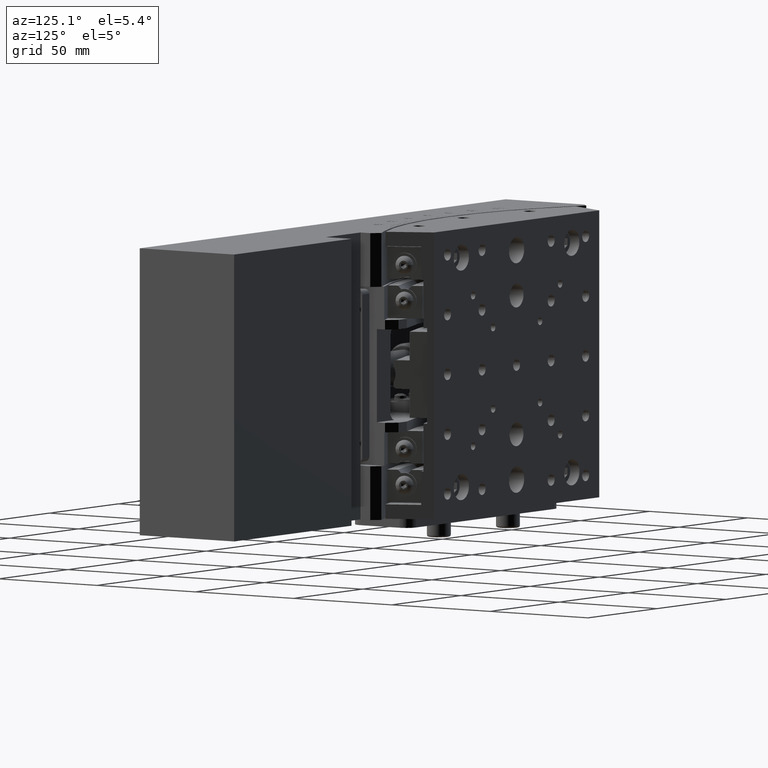
[diagram: clean part render]
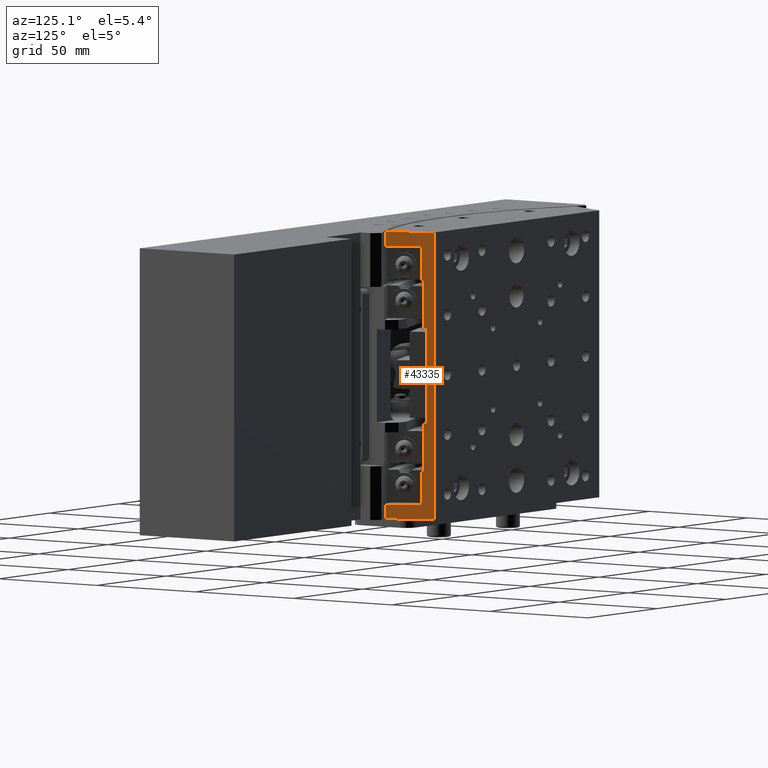
[diagram: same view with one face highlighted and labeled with its STEP entity id]
A machine part, auxiliary view. The second image highlights one B-rep face of the part: STEP entity #43335.
In plain terms, the highlighted planar face has unit normal (-0.895, -0.4462, 0).
Its self-contained STEP definition (entity closure, byte-faithful):
#33 = DIRECTION ( 'NONE',  ( 3.075322940349819998E-23, -3.329426883923090276E-23, 1.000000000000000000 ) ) ;
#1913 = ORIENTED_EDGE ( 'NONE', *, *, #32217, .T. ) ;
#2036 = CARTESIAN_POINT ( 'NONE',  ( -25.42220997326289833, 23.62374986686385014, 65.49875000000000114 ) ) ;
#3811 = LINE ( 'NONE', #35854, #94184 ) ;
#4247 = ORIENTED_EDGE ( 'NONE', *, *, #85969, .F. ) ;
#4286 = CARTESIAN_POINT ( 'NONE',  ( -32.56080812360629295, 37.94298226416484709, -34.50124999999999886 ) ) ;
#5079 = DIRECTION ( 'NONE',  ( 0.4461623843964628300, -0.8949520248313106441, -1.948631312220664627E-23 ) ) ;
#6230 = CARTESIAN_POINT ( 'NONE',  ( -34.52925596305554734, 41.89146927539730569, -14.50125000000000064 ) ) ;
#6756 = ORIENTED_EDGE ( 'NONE', *, *, #88721, .T. ) ;
#7147 = CARTESIAN_POINT ( 'NONE',  ( -34.52925596305554734, 41.89146927539730569, -34.50124999999999886 ) ) ;
#8304 = CARTESIAN_POINT ( 'NONE',  ( -33.23005170020099541, 39.28541030141180102, -14.50125000000000064 ) ) ;
#8516 = CARTESIAN_POINT ( 'NONE',  ( -32.56080812360629295, 37.94298226416484709, -34.50124999999999886 ) ) ;
#9094 = CARTESIAN_POINT ( 'NONE',  ( -34.52925596305554734, 41.89146927539730569, 65.49875000000000114 ) ) ;
#9528 = DIRECTION ( 'NONE',  ( 3.075322940349819998E-23, -3.329426883923090276E-23, 1.000000000000000000 ) ) ;
#10616 = PLANE ( 'NONE',  #102116 ) ;
#14829 = CARTESIAN_POINT ( 'NONE',  ( -32.11464573920989807, 37.04803023933354922, 59.49875000000000114 ) ) ;
#15319 = LINE ( 'NONE', #14829, #31119 ) ;
#16810 = CARTESIAN_POINT ( 'NONE',  ( -25.42220997326289833, 23.62374986686385014, 65.49875000000000114 ) ) ;
#17483 = EDGE_CURVE ( 'NONE', #38943, #31055, #63859, .T. ) ;
#18382 = FACE_OUTER_BOUND ( 'NONE', #40174, .T. ) ;
#20522 = VECTOR ( 'NONE', #99701, 1000.000000000000000 ) ;
#20840 = DIRECTION ( 'NONE',  ( -3.075322940349819998E-23, 3.329426883923090276E-23, -1.000000000000000000 ) ) ;
#21604 = VERTEX_POINT ( 'NONE', #69842 ) ;
#22491 = VERTEX_POINT ( 'NONE', #42437 ) ;
#22537 = ORIENTED_EDGE ( 'NONE', *, *, #50796, .T. ) ;
#23777 = VERTEX_POINT ( 'NONE', #2036 ) ;
#24243 = CARTESIAN_POINT ( 'NONE',  ( -34.52925596305554734, 41.89146927539730569, 65.49875000000000114 ) ) ;
#27319 = VERTEX_POINT ( 'NONE', #38120 ) ;
#29309 = DIRECTION ( 'NONE',  ( -3.075322940349819998E-23, 3.329426883923090276E-23, -1.000000000000000000 ) ) ;
#29758 = CARTESIAN_POINT ( 'NONE',  ( -32.11464573920989807, 37.04803023933354922, -48.50125000000000597 ) ) ;
#29898 = CARTESIAN_POINT ( 'NONE',  ( -32.56080812360629295, 37.94298226416484709, -34.50124999999999886 ) ) ;
#30318 = LINE ( 'NONE', #61822, #30884 ) ;
#30672 = VERTEX_POINT ( 'NONE', #71172 ) ;
#30802 = CARTESIAN_POINT ( 'NONE',  ( -32.11464573920989807, 37.04803023933354922, -34.50124999999999886 ) ) ;
#30884 = VECTOR ( 'NONE', #93294, 1000.000000000000114 ) ;
#31055 = VERTEX_POINT ( 'NONE', #30802 ) ;
#31119 = VECTOR ( 'NONE', #46828, 1000.000000000000000 ) ;
#31208 = EDGE_CURVE ( 'NONE', #76493, #22491, #89083, .T. ) ;
#31897 = EDGE_CURVE ( 'NONE', #31055, #47418, #77932, .T. ) ;
#32138 = CARTESIAN_POINT ( 'NONE',  ( -34.52925596305554734, 41.89146927539730569, 25.49875000000000114 ) ) ;
#32217 = EDGE_CURVE ( 'NONE', #78631, #30672, #30318, .T. ) ;
#33744 = ORIENTED_EDGE ( 'NONE', *, *, #31897, .F. ) ;
#34676 = ORIENTED_EDGE ( 'NONE', *, *, #92669, .F. ) ;
#35854 = CARTESIAN_POINT ( 'NONE',  ( -34.52925596305554734, 41.89146927539730569, 65.49875000000000114 ) ) ;
#36550 = EDGE_CURVE ( 'NONE', #21604, #44209, #54827, .T. ) ;
#36751 = VECTOR ( 'NONE', #95013, 1000.000000000000000 ) ;
#36757 = VECTOR ( 'NONE', #48325, 1000.000000000000000 ) ;
#37771 = DIRECTION ( 'NONE',  ( -0.4461623843964628300, 0.8949520248313106441, 1.948631312220664627E-23 ) ) ;
#38120 = CARTESIAN_POINT ( 'NONE',  ( -34.52925596305554734, 41.89146927539730569, -54.50124999999999886 ) ) ;
#38226 = CARTESIAN_POINT ( 'NONE',  ( -32.11464573920989807, 37.04803023933354922, -48.50125000000000597 ) ) ;
#38273 = LINE ( 'NONE', #6230, #86740 ) ;
#38943 = VERTEX_POINT ( 'NONE', #29758 ) ;
#39055 = LINE ( 'NONE', #16810, #36757 ) ;
#39357 = EDGE_CURVE ( 'NONE', #23777, #62970, #47017, .T. ) ;
#40174 = EDGE_LOOP ( 'NONE', ( #52500, #63288, #22537, #70588, #48222, #86915, #49058, #1913, #6756, #67603, #44335, #42851, #4247, #63561, #34676, #33744 ) ) ;
#42148 = DIRECTION ( 'NONE',  ( -0.4461623843964632186, 0.8949520248313104220, 0.000000000000000000 ) ) ;
#42414 = CARTESIAN_POINT ( 'NONE',  ( -33.23005170020099541, 39.28541030141180102, 25.49875000000000114 ) ) ;
#42437 = CARTESIAN_POINT ( 'NONE',  ( -32.56080812360629295, 37.94298226416484709, 45.49874999999999403 ) ) ;
#42772 = LINE ( 'NONE', #50500, #55009 ) ;
#42851 = ORIENTED_EDGE ( 'NONE', *, *, #36550, .T. ) ;
#42863 = CARTESIAN_POINT ( 'NONE',  ( -25.42220997326289833, 23.62374986686385014, -48.50125000000000597 ) ) ;
#43335 = ADVANCED_FACE ( 'NONE', ( #18382 ), #10616, .F. ) ;
#44209 = VERTEX_POINT ( 'NONE', #42414 ) ;
#44335 = ORIENTED_EDGE ( 'NONE', *, *, #92410, .F. ) ;
#45650 = VERTEX_POINT ( 'NONE', #68599 ) ;
#46583 = VERTEX_POINT ( 'NONE', #72771 ) ;
#46828 = DIRECTION ( 'NONE',  ( -3.075322940349819998E-23, 3.329426883923090276E-23, -1.000000000000000000 ) ) ;
#47017 = LINE ( 'NONE', #24243, #36751 ) ;
#47418 = VERTEX_POINT ( 'NONE', #4286 ) ;
#48222 = ORIENTED_EDGE ( 'NONE', *, *, #72479, .F. ) ;
#48325 = DIRECTION ( 'NONE',  ( -3.075322940349819998E-23, 3.329426883923090276E-23, -1.000000000000000000 ) ) ;
#49058 = ORIENTED_EDGE ( 'NONE', *, *, #58620, .T. ) ;
#50064 = LINE ( 'NONE', #84609, #99006 ) ;
#50500 = CARTESIAN_POINT ( 'NONE',  ( -34.52925596305554734, 41.89146927539730569, -54.50124999999999886 ) ) ;
#50796 = EDGE_CURVE ( 'NONE', #73496, #64953, #39055, .T. ) ;
#52500 = ORIENTED_EDGE ( 'NONE', *, *, #17483, .F. ) ;
#53104 = LINE ( 'NONE', #29898, #94323 ) ;
#54463 = CARTESIAN_POINT ( 'NONE',  ( -25.42220997326289833, 23.62374986686385014, -54.50124999999999886 ) ) ;
#54827 = LINE ( 'NONE', #32138, #92333 ) ;
#55009 = VECTOR ( 'NONE', #74277, 1000.000000000000000 ) ;
#57155 = VECTOR ( 'NONE', #64471, 1000.000000000000114 ) ;
#58620 = EDGE_CURVE ( 'NONE', #23777, #78631, #99552, .T. ) ;
#61390 = DIRECTION ( 'NONE',  ( 3.075322940349819998E-23, -3.329426883923090276E-23, 1.000000000000000000 ) ) ;
#61822 = CARTESIAN_POINT ( 'NONE',  ( -34.52925596305554734, 41.89146927539730569, 59.49875000000000114 ) ) ;
#62970 = VERTEX_POINT ( 'NONE', #89377 ) ;
#63288 = ORIENTED_EDGE ( 'NONE', *, *, #71531, .T. ) ;
#63561 = ORIENTED_EDGE ( 'NONE', *, *, #84015, .F. ) ;
#63859 = LINE ( 'NONE', #38226, #20522 ) ;
#64471 = DIRECTION ( 'NONE',  ( -0.4461623843964628300, 0.8949520248313106441, 1.948631312220664627E-23 ) ) ;
#64953 = VERTEX_POINT ( 'NONE', #54463 ) ;
#67603 = ORIENTED_EDGE ( 'NONE', *, *, #31208, .T. ) ;
#68550 = CARTESIAN_POINT ( 'NONE',  ( -25.42220997326289833, 23.62374986686385014, 65.49875000000000114 ) ) ;
#68599 = CARTESIAN_POINT ( 'NONE',  ( -32.56080812360629295, 37.94298226416484709, -14.50125000000000064 ) ) ;
#68760 = CARTESIAN_POINT ( 'NONE',  ( -32.11464573920989807, 37.04803023933354922, 45.49874999999999403 ) ) ;
#69808 = LINE ( 'NONE', #8304, #88674 ) ;
#69842 = CARTESIAN_POINT ( 'NONE',  ( -32.56080812360629295, 37.94298226416484709, 25.49875000000000114 ) ) ;
#70588 = ORIENTED_EDGE ( 'NONE', *, *, #75507, .T. ) ;
#71172 = CARTESIAN_POINT ( 'NONE',  ( -32.11464573920989807, 37.04803023933354922, 59.49875000000000114 ) ) ;
#71531 = EDGE_CURVE ( 'NONE', #38943, #73496, #50064, .T. ) ;
#72479 = EDGE_CURVE ( 'NONE', #62970, #27319, #3811, .T. ) ;
#72771 = CARTESIAN_POINT ( 'NONE',  ( -33.23005170020099541, 39.28541030141180102, -14.50125000000000064 ) ) ;
#73496 = VERTEX_POINT ( 'NONE', #42863 ) ;
#74277 = DIRECTION ( 'NONE',  ( -0.4461623843964632741, 0.8949520248313105331, 1.948631312220664040E-23 ) ) ;
#75507 = EDGE_CURVE ( 'NONE', #64953, #27319, #42772, .T. ) ;
#76493 = VERTEX_POINT ( 'NONE', #68760 ) ;
#77932 = LINE ( 'NONE', #7147, #57155 ) ;
#78631 = VERTEX_POINT ( 'NONE', #87200 ) ;
#78866 = VECTOR ( 'NONE', #29309, 1000.000000000000000 ) ;
#84015 = EDGE_CURVE ( 'NONE', #45650, #46583, #38273, .T. ) ;
#84609 = CARTESIAN_POINT ( 'NONE',  ( -34.52925596305554734, 41.89146927539730569, -48.50125000000000597 ) ) ;
#85969 = EDGE_CURVE ( 'NONE', #46583, #44209, #69808, .T. ) ;
#86326 = DIRECTION ( 'NONE',  ( -0.4461623843964628300, 0.8949520248313106441, 1.948631312220664627E-23 ) ) ;
#86740 = VECTOR ( 'NONE', #37771, 1000.000000000000114 ) ;
#86915 = ORIENTED_EDGE ( 'NONE', *, *, #39357, .F. ) ;
#87200 = CARTESIAN_POINT ( 'NONE',  ( -25.42220997326289833, 23.62374986686385014, 59.49875000000000114 ) ) ;
#88048 = CARTESIAN_POINT ( 'NONE',  ( -34.52925596305554734, 41.89146927539730569, 45.49874999999999403 ) ) ;
#88674 = VECTOR ( 'NONE', #33, 1000.000000000000000 ) ;
#88721 = EDGE_CURVE ( 'NONE', #30672, #76493, #15319, .T. ) ;
#89083 = LINE ( 'NONE', #88048, #90132 ) ;
#89377 = CARTESIAN_POINT ( 'NONE',  ( -34.52925596305554734, 41.89146927539730569, 65.49875000000000114 ) ) ;
#90132 = VECTOR ( 'NONE', #97350, 1000.000000000000114 ) ;
#92333 = VECTOR ( 'NONE', #86326, 1000.000000000000114 ) ;
#92410 = EDGE_CURVE ( 'NONE', #21604, #22491, #53104, .T. ) ;
#92669 = EDGE_CURVE ( 'NONE', #47418, #45650, #94756, .T. ) ;
#93294 = DIRECTION ( 'NONE',  ( -0.4461623843964628300, 0.8949520248313106441, 1.948631312220664627E-23 ) ) ;
#94184 = VECTOR ( 'NONE', #20840, 1000.000000000000000 ) ;
#94323 = VECTOR ( 'NONE', #61390, 1000.000000000000000 ) ;
#94756 = LINE ( 'NONE', #8516, #97662 ) ;
#95013 = DIRECTION ( 'NONE',  ( -0.4461623843964632741, 0.8949520248313105331, 1.948631312220664040E-23 ) ) ;
#95870 = DIRECTION ( 'NONE',  ( -0.8949520248313105331, -0.4461623843964632741, 6.742132956602016506E-25 ) ) ;
#97350 = DIRECTION ( 'NONE',  ( -0.4461623843964628300, 0.8949520248313106441, 1.948631312220664627E-23 ) ) ;
#97662 = VECTOR ( 'NONE', #9528, 1000.000000000000000 ) ;
#99006 = VECTOR ( 'NONE', #5079, 1000.000000000000114 ) ;
#99552 = LINE ( 'NONE', #68550, #78866 ) ;
#99701 = DIRECTION ( 'NONE',  ( 3.075322940349819998E-23, -3.329426883923090276E-23, 1.000000000000000000 ) ) ;
#102116 = AXIS2_PLACEMENT_3D ( 'NONE', #9094, #95870, #42148 ) ;